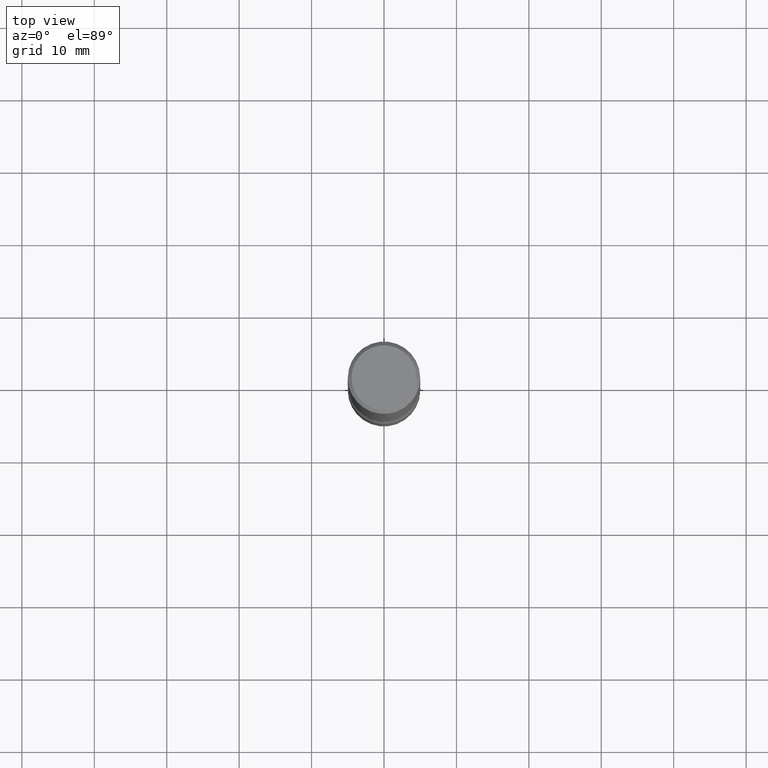
[diagram: clean part render]
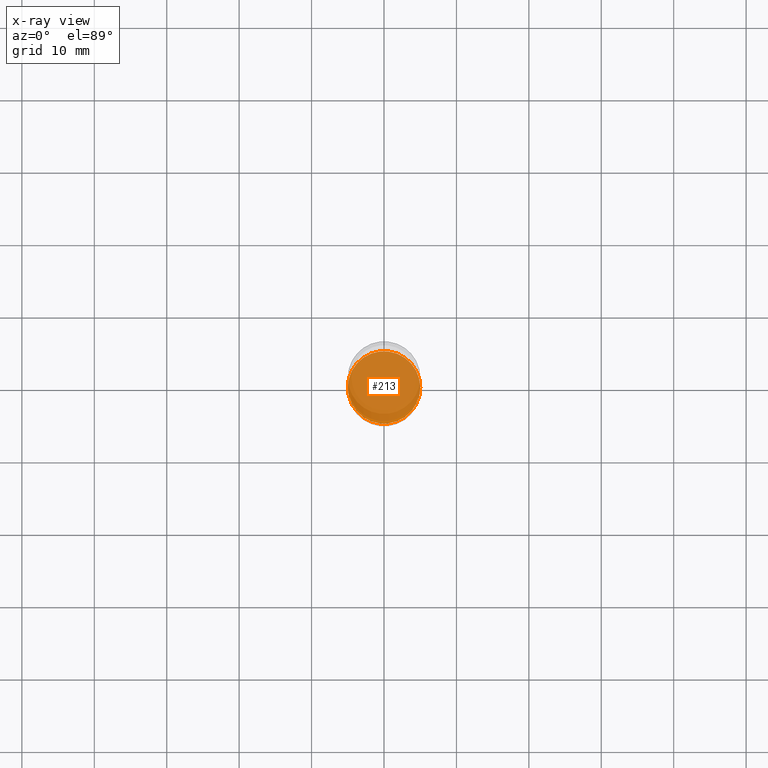
[diagram: x-ray — body ghosted, one internal face saturated and labeled with its STEP entity id]
A machine part, top view, then the same camera in x-ray: the body is ghosted and one INTERNAL B-rep face — a face not visible from any outside direction — is saturated and labeled: STEP entity #213.
In plain terms, the highlighted planar face has unit normal (0, -0, -1).
Its self-contained STEP definition (entity closure, byte-faithful):
#7 = FACE_OUTER_BOUND ( 'NONE', #514, .T. ) ;
#52 = ORIENTED_EDGE ( 'NONE', *, *, #247, .T. ) ;
#59 = DIRECTION ( 'NONE',  ( -2.445468806185136597E-29, 3.491481338843145583E-15, 1.000000000000000000 ) ) ;
#107 = DIRECTION ( 'NONE',  ( 1.000000000000000000, -6.982962677686272233E-15, 0.000000000000000000 ) ) ;
#141 = DIRECTION ( 'NONE',  ( -2.445468806185136597E-29, 3.491481338843145583E-15, 1.000000000000000000 ) ) ;
#145 = DIRECTION ( 'NONE',  ( -1.000000000000000000, 6.982962677686265922E-15, -4.876176775795935793E-29 ) ) ;
#169 = CARTESIAN_POINT ( 'NONE',  ( 0.1968500000000001915, -1.209658624655596058E-14, -3.070900000000000407 ) ) ;
#174 = CARTESIAN_POINT ( 'NONE',  ( 7.509790156913936305E-29, -1.072199004345341739E-14, -3.070900000000000407 ) ) ;
#195 = CIRCLE ( 'NONE', #255, 0.1968500000000001915 ) ;
#197 = CARTESIAN_POINT ( 'NONE',  ( -0.1968500000000001915, -1.080088157070807781E-14, -3.070900000000000407 ) ) ;
#213 = ADVANCED_FACE ( 'NONE', ( #7 ), #523, .F. ) ;
#240 = AXIS2_PLACEMENT_3D ( 'NONE', #174, #273, #145 ) ;
#247 = EDGE_CURVE ( 'NONE', #335, #426, #277, .T. ) ;
#255 = AXIS2_PLACEMENT_3D ( 'NONE', #350, #141, #270 ) ;
#270 = DIRECTION ( 'NONE',  ( 1.000000000000000000, -6.982962677686272233E-15, 0.000000000000000000 ) ) ;
#273 = DIRECTION ( 'NONE',  ( 2.438088387897960049E-29, -3.491481338843145188E-15, -1.000000000000000000 ) ) ;
#277 = CIRCLE ( 'NONE', #312, 0.1968500000000001915 ) ;
#312 = AXIS2_PLACEMENT_3D ( 'NONE', #450, #59, #107 ) ;
#335 = VERTEX_POINT ( 'NONE', #197 ) ;
#350 = CARTESIAN_POINT ( 'NONE',  ( 7.509790156913936305E-29, -1.072199004345341739E-14, -3.070900000000000407 ) ) ;
#372 = ORIENTED_EDGE ( 'NONE', *, *, #522, .T. ) ;
#426 = VERTEX_POINT ( 'NONE', #169 ) ;
#450 = CARTESIAN_POINT ( 'NONE',  ( 7.509790156913936305E-29, -1.072199004345341739E-14, -3.070900000000000407 ) ) ;
#514 = EDGE_LOOP ( 'NONE', ( #372, #52 ) ) ;
#522 = EDGE_CURVE ( 'NONE', #426, #335, #195, .T. ) ;
#523 = PLANE ( 'NONE',  #240 ) ;